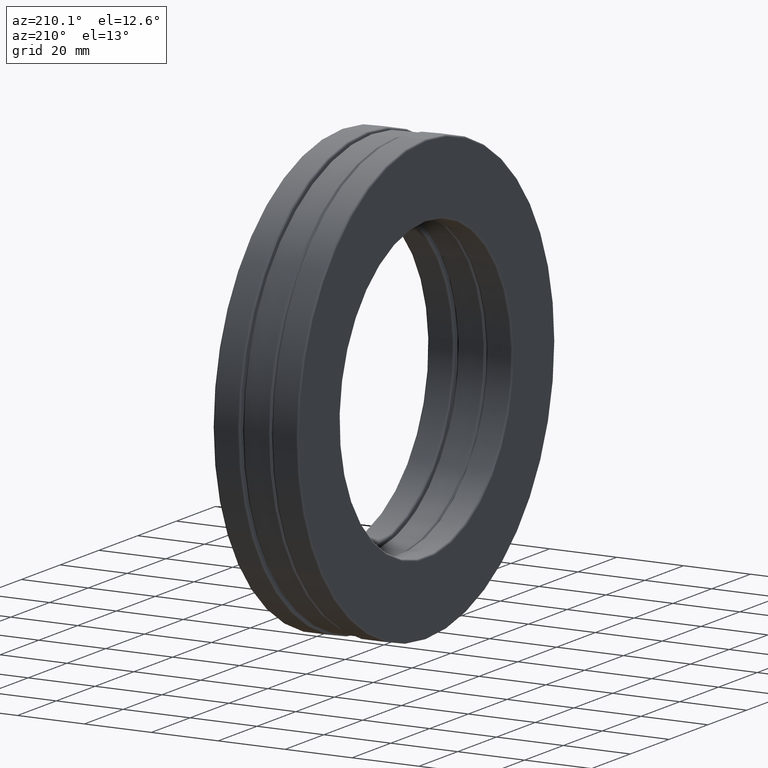
[diagram: clean part render]
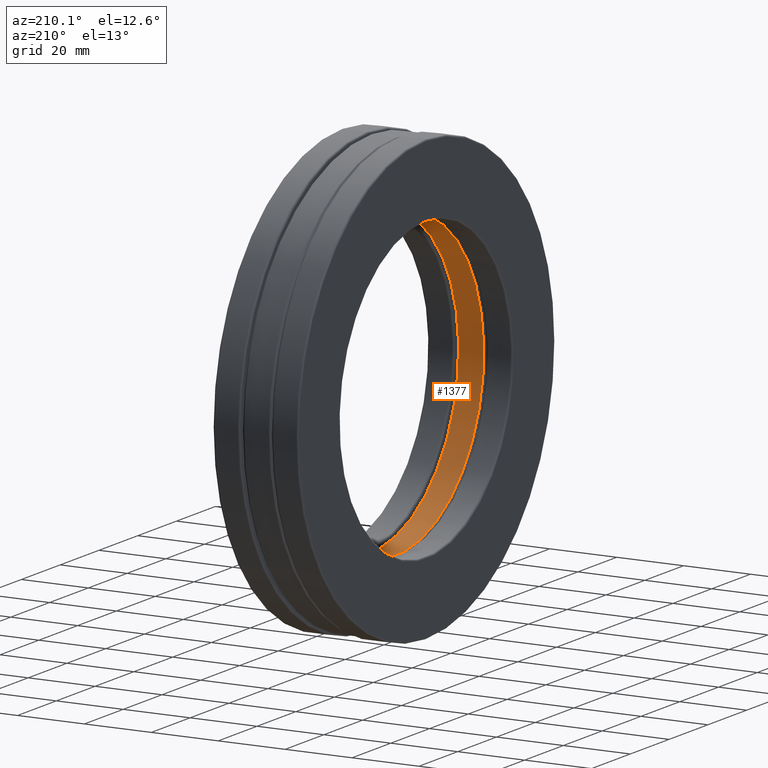
[diagram: same view with one face highlighted and labeled with its STEP entity id]
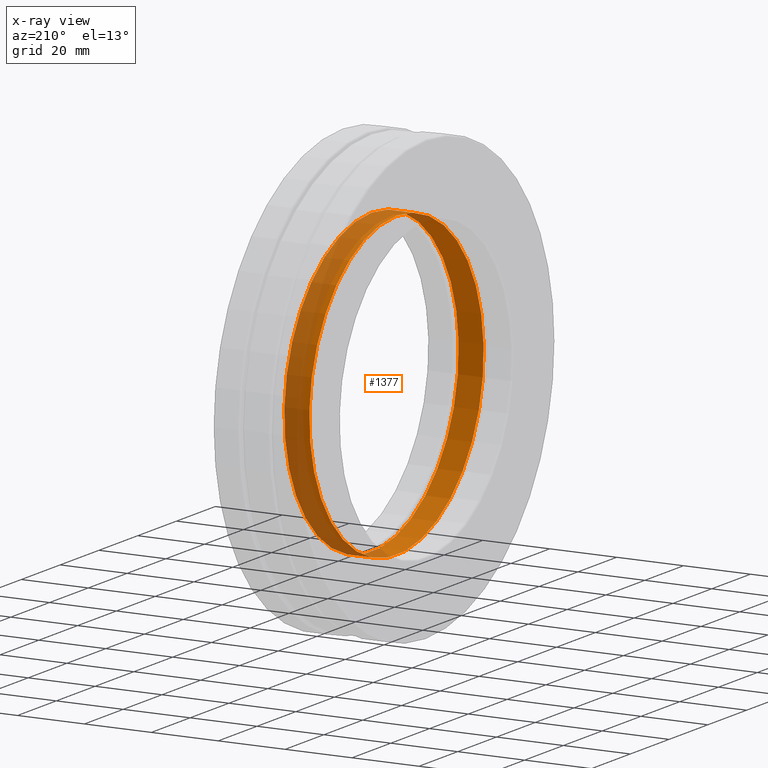
[diagram: x-ray of the same camera — body ghosted, the highlighted face saturated]
A machine part, auxiliary view. The second image highlights one B-rep face of the part: STEP entity #1377.
The next image is the same camera in x-ray: the body ghosted, the highlighted face saturated — about 40% of this face is hidden behind the body in this view.
In plain terms, the highlighted cylindrical surface (bore or boss wall) has radius 44.958 mm, axis along (-1, -0, -0).
Its self-contained STEP definition (entity closure, byte-faithful):
#63 = DIRECTION ( 'NONE',  ( -1.000000000000000000, -0.0000000000000000000, -0.0000000000000000000 ) ) ;
#135 = CIRCLE ( 'NONE', #994, 1.770000000000000000 ) ;
#139 = CARTESIAN_POINT ( 'NONE',  ( -0.1474999999999998800, 0.0000000000000000000, 1.770000000000000000 ) ) ;
#174 = DIRECTION ( 'NONE',  ( 0.0000000000000000000, 0.0000000000000000000, 1.000000000000000000 ) ) ;
#191 = DIRECTION ( 'NONE',  ( 0.0000000000000000000, 0.0000000000000000000, 1.000000000000000000 ) ) ;
#267 = DIRECTION ( 'NONE',  ( 0.0000000000000000000, 0.0000000000000000000, 1.000000000000000000 ) ) ;
#360 = EDGE_LOOP ( 'NONE', ( #379 ) ) ;
#379 = ORIENTED_EDGE ( 'NONE', *, *, #1218, .T. ) ;
#528 = CARTESIAN_POINT ( 'NONE',  ( 0.0000000000000000000, 0.0000000000000000000, 0.0000000000000000000 ) ) ;
#530 = CARTESIAN_POINT ( 'NONE',  ( 0.1475000000000001300, 0.0000000000000000000, 0.0000000000000000000 ) ) ;
#574 = ORIENTED_EDGE ( 'NONE', *, *, #1262, .F. ) ;
#676 = EDGE_LOOP ( 'NONE', ( #574 ) ) ;
#894 = FACE_OUTER_BOUND ( 'NONE', #676, .T. ) ;
#914 = FACE_OUTER_BOUND ( 'NONE', #360, .T. ) ;
#994 = AXIS2_PLACEMENT_3D ( 'NONE', #1402, #1400, #267 ) ;
#1000 = VERTEX_POINT ( 'NONE', #1379 ) ;
#1002 = CIRCLE ( 'NONE', #1138, 1.770000000000000000 ) ;
#1107 = DIRECTION ( 'NONE',  ( -1.000000000000000000, -0.0000000000000000000, -0.0000000000000000000 ) ) ;
#1138 = AXIS2_PLACEMENT_3D ( 'NONE', #530, #63, #174 ) ;
#1150 = VERTEX_POINT ( 'NONE', #139 ) ;
#1218 = EDGE_CURVE ( 'NONE', #1150, #1150, #135, .T. ) ;
#1262 = EDGE_CURVE ( 'NONE', #1000, #1000, #1002, .T. ) ;
#1291 = CYLINDRICAL_SURFACE ( 'NONE', #1403, 1.770000000000000000 ) ;
#1377 = ADVANCED_FACE ( 'NONE', ( #894, #914 ), #1291, .F. ) ;
#1379 = CARTESIAN_POINT ( 'NONE',  ( 0.1475000000000001300, 0.0000000000000000000, 1.770000000000000000 ) ) ;
#1400 = DIRECTION ( 'NONE',  ( -1.000000000000000000, -0.0000000000000000000, -0.0000000000000000000 ) ) ;
#1402 = CARTESIAN_POINT ( 'NONE',  ( -0.1474999999999998800, 0.0000000000000000000, 0.0000000000000000000 ) ) ;
#1403 = AXIS2_PLACEMENT_3D ( 'NONE', #528, #1107, #191 ) ;